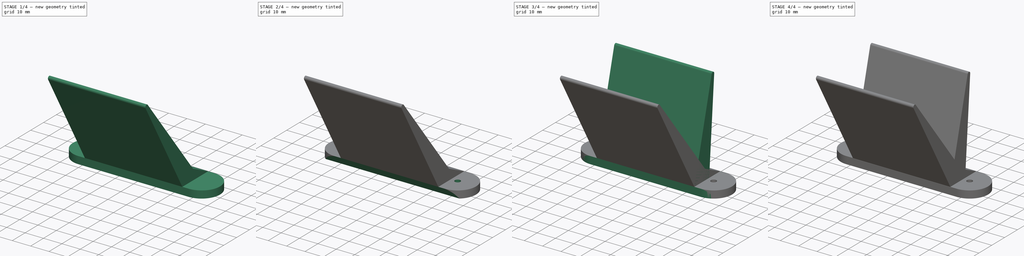
[diagram: build sequence overview — one tinted view per stage of 4, left to right]
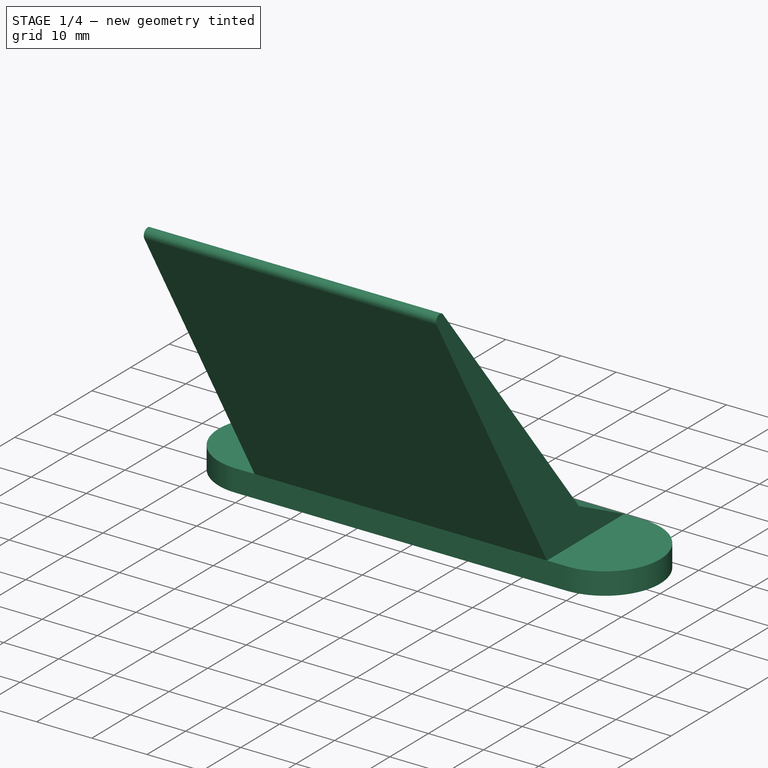
[diagram: stage 1 of 4 — iso view after this stage's code; geometry added in this stage tinted green]
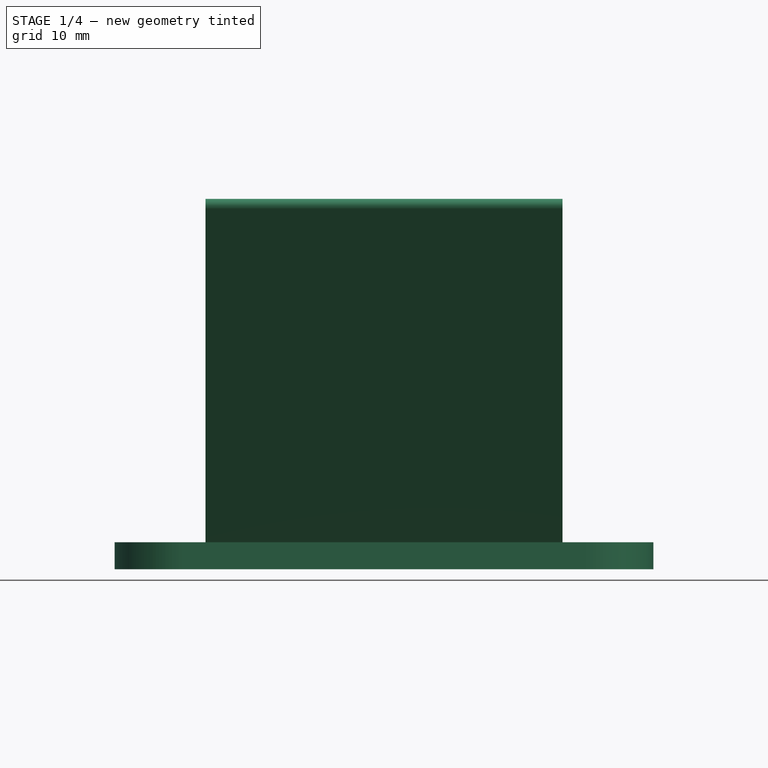
[diagram: stage 1 of 4 — front view after this stage's code; geometry added in this stage tinted green]
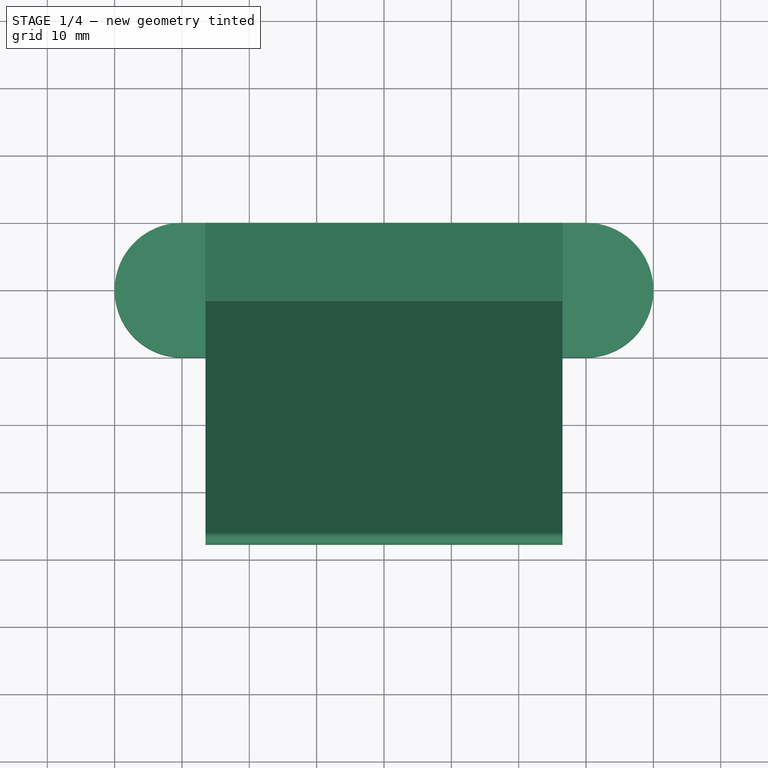
[diagram: stage 1 of 4 — top view after this stage's code; geometry added in this stage tinted green]
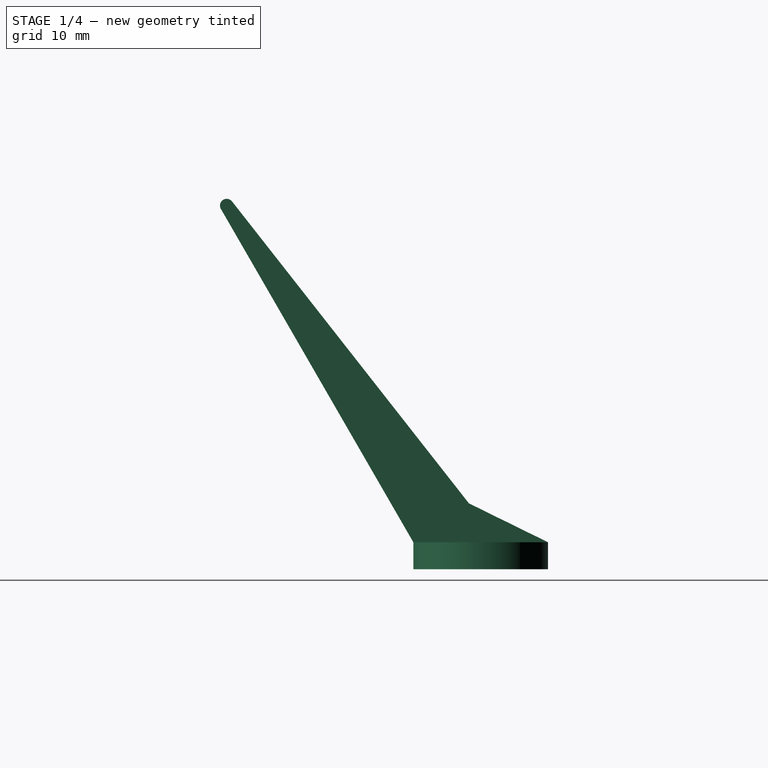
[diagram: stage 1 of 4 — right view after this stage's code; geometry added in this stage tinted green]
FCSTD DOCUMENT  (FreeCAD 0.19R24291 (Git))
Label: Webcammount
License: All rights reserved
LicenseURL: http://en.wikipedia.org/wiki/All_rights_reserved
objects: Sketcher::SketchObject×9, PartDesign::Pocket×5, PartDesign::Pad×4, PartDesign::Body×2, PartDesign::Fillet×1
note: 31 computed .brp shape members not serialized (recipe doc carries the construction recipe); baked Part::Feature solids carry a one-line shape summary decoded from their .brp

FEATURE [PartDesign::Body] Body  label="FoscamW81Flat"
  Group = -> [Sketch,Pad,Sketch001,Pad001,Sketch002,Pocket,Sketch003,Pocket001,Fillet]
  Origin = -> Origin
  Tip = -> Fillet
FEATURE [Sketcher::SketchObject] Sketch004
  FullyConstrained = true
  MapMode = 5
  Support = -> [XY_Plane001]
  expr: Constraints[9] = -Constraints[8] / 2
  sketch-geometry (4):
    g0: LineSegment StartX=-30 StartY=10 StartZ=0 EndX=30 EndY=10 EndZ=0
    g1: LineSegment StartX=30 StartY=-10 StartZ=0 EndX=-30 EndY=-10 EndZ=0
    g2: ArcOfCircle CenterX=-30 CenterY=0 CenterZ=0 NormalX=0 NormalY=0 NormalZ=1 AngleXU=0 Radius=10 StartAngle=1.5708 EndAngle=4.71239
    g3: ArcOfCircle CenterX=30 CenterY=6e-16 CenterZ=0 NormalX=0 NormalY=0 NormalZ=1 AngleXU=0 Radius=10 StartAngle=4.71239 EndAngle=7.85398
  constraints (10):
    c: Horizontal(g0)
    c: Horizontal(g1)
    c: Tangent(g3,g0) = 1.5708
    c: Tangent(g3,g1) = 1.5708
    c: Tangent(g2,g0) = 1.5708
    c: Tangent(g2,g1) = 1.5708
    c: PointOnObject(g2,g-1)
    c: Diameter(g2) = 20
    c: Distance(g0) = 60
    c: DistanceX(g-2,g0) = -30
FEATURE [PartDesign::Pad] Pad003
  Direction = (1,1,1)
  Length = 4
  Length2 = 100
  Profile = -> Sketch004
  Type = 0
FEATURE [Sketcher::SketchObject] Sketch005
  ExternalGeometry = -> [Pad003]
  FullyConstrained = true
  MapMode = 5
  Placement = pos=(0,0,0) rot=(0.57735,0.57735,0.57735;2.0944rad)
  Support = -> [YZ_Plane001]
  sketch-geometry (13):
    g0: LineSegment StartX=0 StartY=0 StartZ=0 EndX=0 EndY=4 EndZ=0
    g1: LineSegment StartX=-10 StartY=4 StartZ=0 EndX=0 EndY=4 EndZ=0
    g2: LineSegment StartX=0 StartY=4 StartZ=0 EndX=2.7866 EndY=4 EndZ=0
    g3: LineSegment StartX=-10 StartY=4 StartZ=0 EndX=2.7866 EndY=4 EndZ=0
    g4: LineSegment StartX=-10 StartY=4 StartZ=0 EndX=-38.5788 EndY=53.5 EndZ=0
    g5: LineSegment StartX=-36.9261 StartY=54.6173 StartZ=0 EndX=2.7866 EndY=4 EndZ=0
    g6: ArcOfCircle CenterX=-37.7128 CenterY=54 CenterZ=0 NormalX=0 NormalY=0 NormalZ=1 AngleXU=0 Radius=1 StartAngle=0.66526 EndAngle=3.66519
    g7: LineSegment StartX=-36.9261 StartY=54.6173 StartZ=0 EndX=-11.001 EndY=21.5735 EndZ=0
    g8: LineSegment StartX=10 StartY=4 StartZ=0 EndX=-10 EndY=4 EndZ=0
    g9: LineSegment StartX=-11.001 StartY=21.5735 StartZ=0 EndX=-17.295 EndY=16.6354 EndZ=0
    g10: LineSegment StartX=-11.001 StartY=21.5735 StartZ=0 EndX=-1.74204 EndY=9.77214 EndZ=0
    g11: LineSegment StartX=-11.001 StartY=21.5735 StartZ=0 EndX=-1.74204 EndY=9.77214 EndZ=0
    g12: LineSegment StartX=-1.74204 StartY=9.77214 StartZ=0 EndX=10 EndY=4 EndZ=0
  constraints (32):
    c: Coincident(g0,g-1)
    c: PointOnObject(g0,g-3)
    c: Vertical(g0)
    c: Coincident(g1,g0)
    c: Coincident(g2,g0)
    c: PointOnObject(g2,g-3)
    c: Coincident(g3,g1)
    c: Coincident(g3,g2)
    c: Coincident(g4,g3)
    c: Coincident(g5,g3)
    c: Tangent(g6,g4) = 1.5708
    c: Tangent(g6,g5) = 1.5708
    c: Diameter(g6) = 2
    c: PointOnObject(g7,g5)
    c: Distance(g6,g3) = 50
    c: Coincident(g-3,g3)
    c: Angle(g3,g4) = 2.0944
    c: Distance(g5,g7) = 42
    c: Coincident(g7,g6)
    c: Coincident(g8,g4)
    c: Coincident(g9,g7)
    c: PointOnObject(g9,g4)
    c: Perpendicular(g7,g9)
    c: Distance(g9) = 8
    c: Coincident(g10,g7)
    c: PointOnObject(g10,g5)
    c: Distance(g10) = 15
    c: Coincident(g8,g-3)
    c: Coincident(g11,g7)
    c: Coincident(g11,g10)
    c: Coincident(g12,g11)
    c: Coincident(g12,g8)
FEATURE [PartDesign::Pad] Pad002
  BaseFeature = -> Pad003
  Direction = (1,1,1)
  Length = 53
  Length2 = 100
  Midplane = true
  Profile = -> Sketch005
  Type = 0
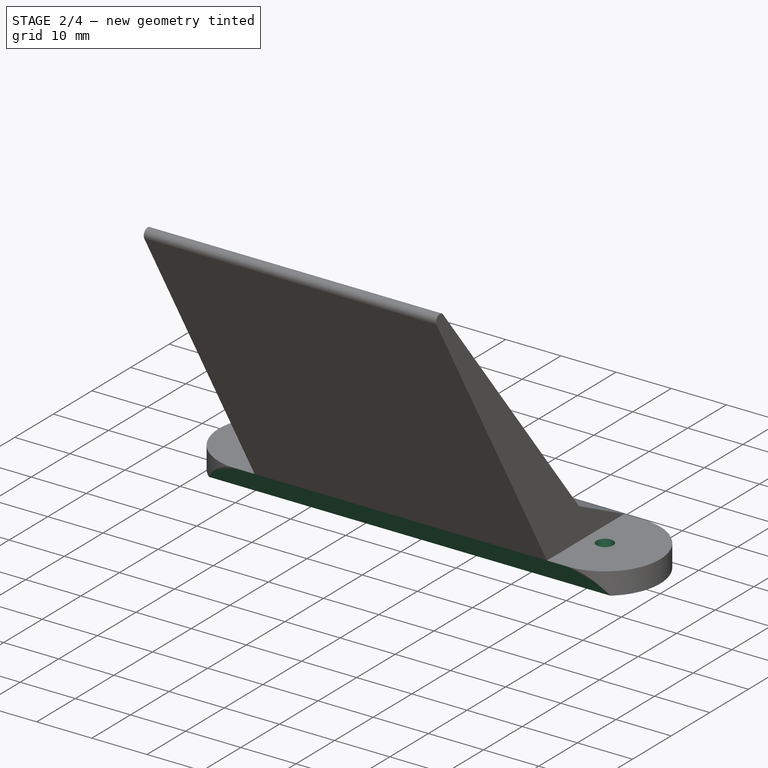
[diagram: stage 2 of 4 — iso view after this stage's code; geometry added in this stage tinted green]
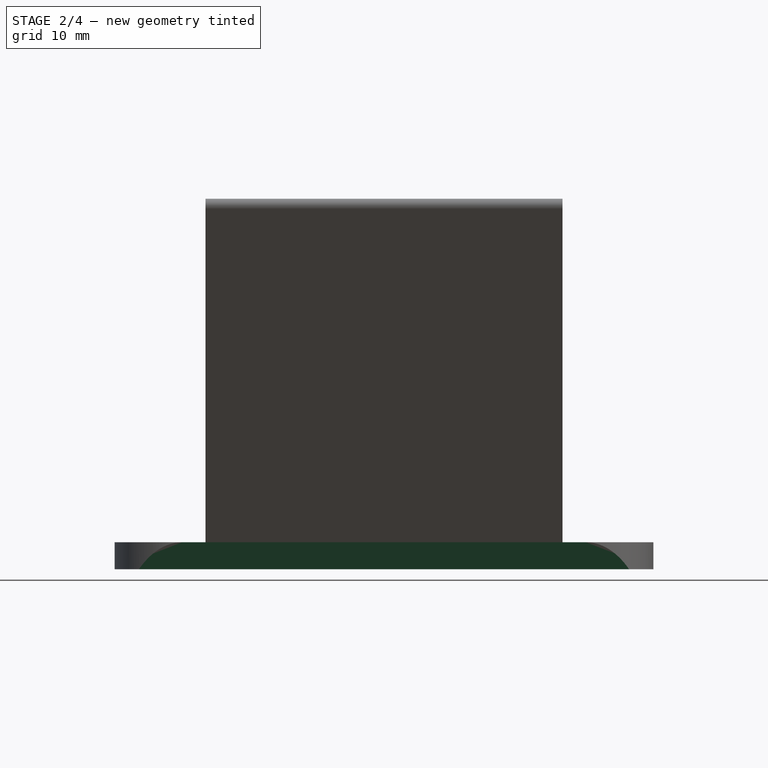
[diagram: stage 2 of 4 — front view after this stage's code; geometry added in this stage tinted green]
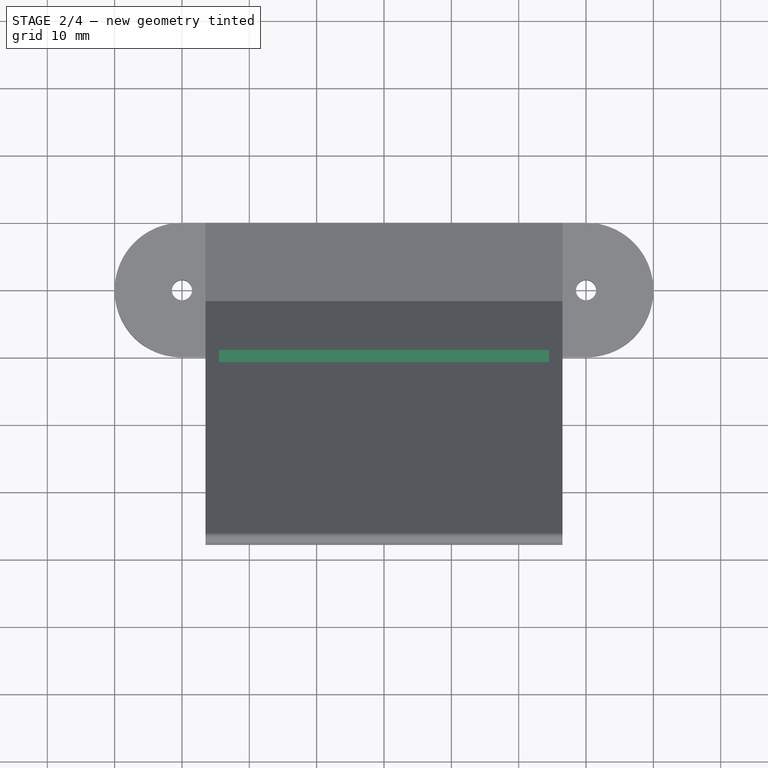
[diagram: stage 2 of 4 — top view after this stage's code; geometry added in this stage tinted green]
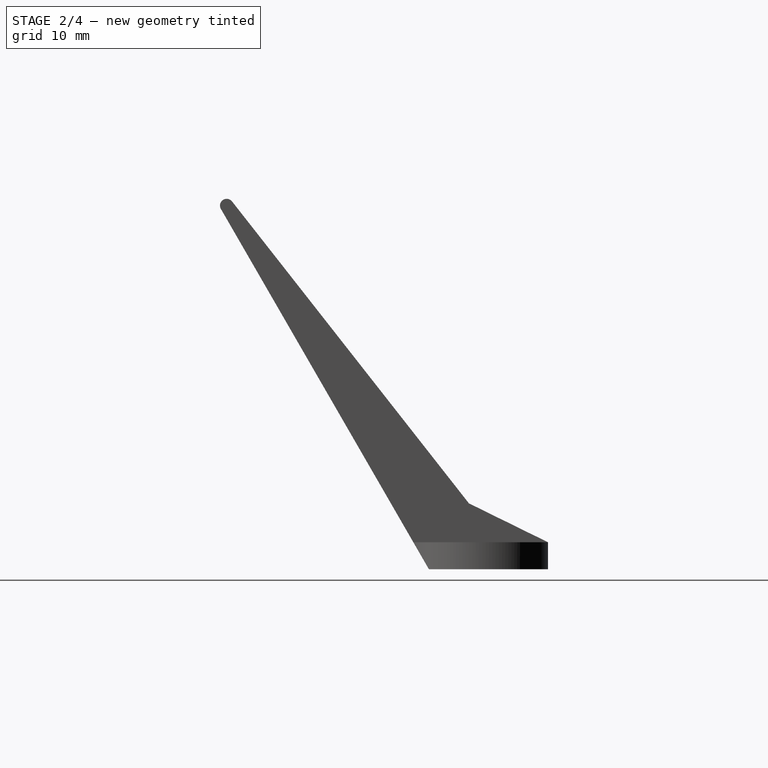
[diagram: stage 2 of 4 — right view after this stage's code; geometry added in this stage tinted green]
FEATURE [Sketcher::SketchObject] Sketch007
  ExternalGeometry = -> [Pad002]
  FullyConstrained = true
  MapMode = 5
  Placement = pos=(0,0,4) rot=(0,0,1;0rad)
  Support = -> [Pad002]
  expr: Constraints[1] = Constraints[0]
  sketch-geometry (2):
    g0: Circle CenterX=-30 CenterY=0 CenterZ=0 NormalX=0 NormalY=0 NormalZ=1 AngleXU=0 Radius=1.5
    g1: Circle CenterX=30 CenterY=4e-16 CenterZ=0 NormalX=0 NormalY=0 NormalZ=1 AngleXU=0 Radius=1.5
  constraints (4):
    c: Diameter(g0) = 3
    c: Diameter(g1) = 3
    c: Coincident(g0,g-3)
    c: Coincident(g1,g-4)
FEATURE [PartDesign::Pocket] Pocket002
  BaseFeature = -> Pad002
  Length = 5
  Length2 = 100
  Profile = -> Sketch007
  Type = 1
FEATURE [Sketcher::SketchObject] Sketch008
  ExternalGeometry = -> [Pocket002]
  FullyConstrained = true
  MapMode = 5
  Placement = pos=(0,3.66741,2.87733) rot=(0,0.437457,0.89924;3.14159rad)
  Support = -> [Pocket002]
  expr: Constraints[11] = -Constraints[9] / 2
  sketch-geometry (4):
    g0: LineSegment StartX=-24.5 StartY=23.7636 StartZ=0 EndX=24.5 EndY=23.7636 EndZ=0
    g1: LineSegment StartX=24.5 StartY=23.7636 StartZ=0 EndX=24.5 EndY=20.7636 EndZ=0
    g2: LineSegment StartX=24.5 StartY=20.7636 StartZ=0 EndX=-24.5 EndY=20.7636 EndZ=0
    g3: LineSegment StartX=-24.5 StartY=20.7636 StartZ=0 EndX=-24.5 EndY=23.7636 EndZ=0
  constraints (12):
    c: Coincident(g0,g1)
    c: Coincident(g1,g2)
    c: Coincident(g2,g3)
    c: Coincident(g3,g0)
    c: Horizontal(g0)
    c: Horizontal(g2)
    c: Vertical(g1)
    c: Vertical(g3)
    c: PointOnObject(g0,g-3)
    c: Distance(g2) = 49
    c: Distance(g3) = 3
    c: DistanceX(g-2,g2) = -24.5
FEATURE [PartDesign::Pocket] Pocket003
  BaseFeature = -> Pocket002
  Length = 7
  Length2 = 100
  Profile = -> Sketch008
  Type = 0
FEATURE [Sketcher::SketchObject] Sketch009
  ExternalGeometry = -> [Pocket003]
  FullyConstrained = true
  MapMode = 5
  Placement = pos=(0,0,0) rot=(0.57735,0.57735,0.57735;2.0944rad)
  Support = -> [YZ_Plane001]
  sketch-geometry (3):
    g0: LineSegment StartX=-10 StartY=4 StartZ=0 EndX=-7.6906 EndY=-1.11e-14 EndZ=0
    g1: LineSegment StartX=-7.6906 StartY=-1.05e-14 StartZ=0 EndX=-10 EndY=0 EndZ=0
    g2: LineSegment StartX=-10 StartY=0 StartZ=0 EndX=-10 EndY=4 EndZ=0
  constraints (7):
    c: Coincident(g0,g-5)
    c: PointOnObject(g0,g-6)
    c: Coincident(g1,g0)
    c: Coincident(g1,g-6)
    c: Coincident(g2,g1)
    c: Coincident(g2,g0)
    c: Parallel(g0,g-3)
FEATURE [PartDesign::Pocket] Pocket004
  BaseFeature = -> Pocket003
  Length = 5
  Length2 = 100
  Midplane = true
  Profile = -> Sketch009
  Type = 1
FEATURE [PartDesign::Body] Body001  label="FoscamW81Straight"
  Group = -> [Sketch004,Pad003,Sketch005,Pad002,Sketch007,Pocket002,Sketch008,Pocket003,Sketch009,Pocket004]
  Origin = -> Origin001
  Tip = -> Pocket004
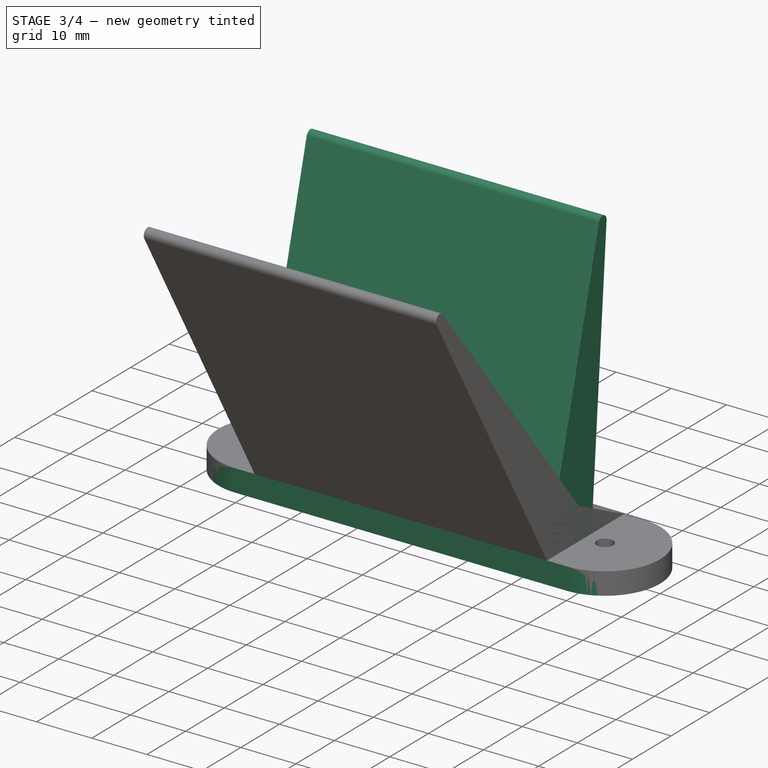
[diagram: stage 3 of 4 — iso view after this stage's code; geometry added in this stage tinted green]
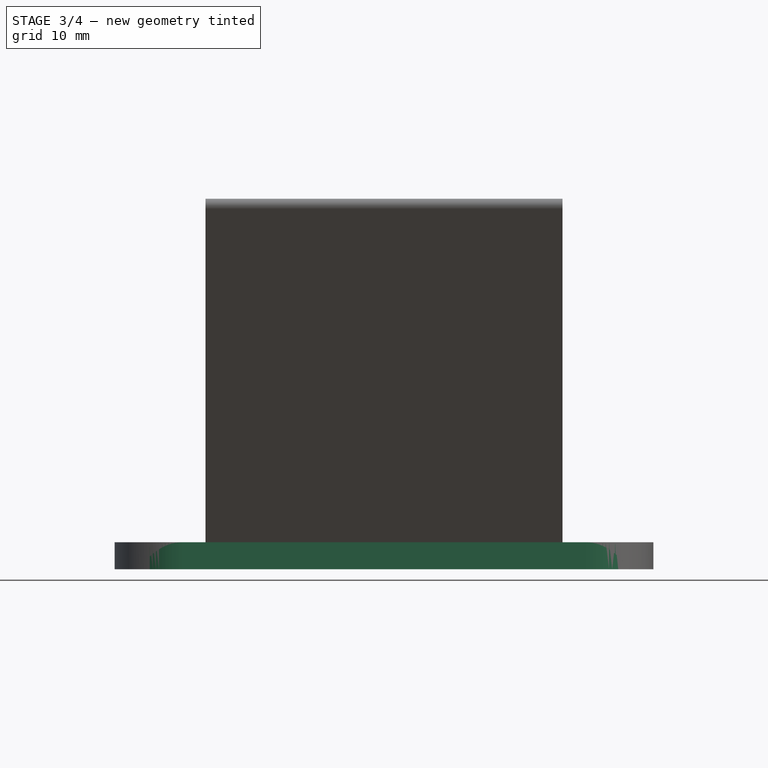
[diagram: stage 3 of 4 — front view after this stage's code; geometry added in this stage tinted green]
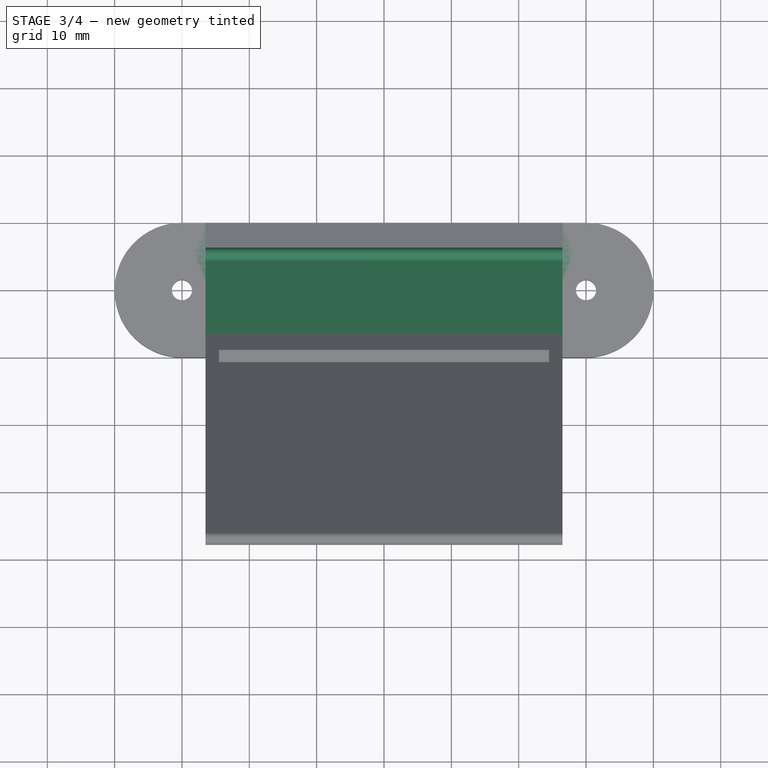
[diagram: stage 3 of 4 — top view after this stage's code; geometry added in this stage tinted green]
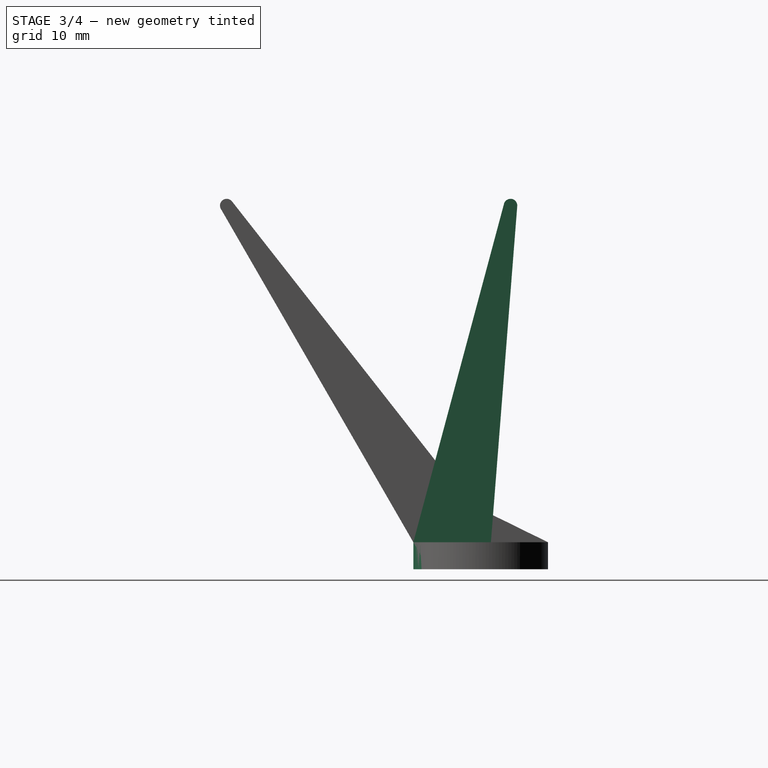
[diagram: stage 3 of 4 — right view after this stage's code; geometry added in this stage tinted green]
FEATURE [Sketcher::SketchObject] Sketch
  FullyConstrained = true
  MapMode = 5
  Support = -> [XY_Plane]
  expr: Constraints[9] = -Constraints[8] / 2
  sketch-geometry (4):
    g0: LineSegment StartX=-30 StartY=10 StartZ=0 EndX=30 EndY=10 EndZ=0
    g1: LineSegment StartX=30 StartY=-10 StartZ=0 EndX=-30 EndY=-10 EndZ=0
    g2: ArcOfCircle CenterX=-30 CenterY=0 CenterZ=0 NormalX=0 NormalY=0 NormalZ=1 AngleXU=0 Radius=10 StartAngle=1.5708 EndAngle=4.71239
    g3: ArcOfCircle CenterX=30 CenterY=6e-16 CenterZ=0 NormalX=0 NormalY=0 NormalZ=1 AngleXU=0 Radius=10 StartAngle=4.71239 EndAngle=7.85398
  constraints (10):
    c: Horizontal(g0)
    c: Horizontal(g1)
    c: Tangent(g3,g0) = 1.5708
    c: Tangent(g3,g1) = 1.5708
    c: Tangent(g2,g0) = 1.5708
    c: Tangent(g2,g1) = 1.5708
    c: PointOnObject(g2,g-1)
    c: Diameter(g2) = 20
    c: Distance(g0) = 60
    c: DistanceX(g-2,g0) = -30
FEATURE [PartDesign::Pad] Pad
  Direction = (1,1,1)
  Length = 4
  Length2 = 100
  Profile = -> Sketch
  Type = 0
FEATURE [Sketcher::SketchObject] Sketch001
  ExternalGeometry = -> [Pad]
  FullyConstrained = true
  MapMode = 5
  Placement = pos=(0,0,0) rot=(0.57735,0.57735,0.57735;2.0944rad)
  Support = -> [YZ_Plane]
  sketch-geometry (8):
    g0: LineSegment StartX=0 StartY=0 StartZ=0 EndX=0 EndY=4 EndZ=0
    g1: LineSegment StartX=-10 StartY=4 StartZ=0 EndX=0 EndY=4 EndZ=0
    g2: LineSegment StartX=0 StartY=4 StartZ=0 EndX=1.51651 EndY=4 EndZ=0
    g3: LineSegment StartX=-10 StartY=4 StartZ=0 EndX=1.51651 EndY=4 EndZ=0
    g4: LineSegment StartX=-10 StartY=4 StartZ=0 EndX=3.46681 EndY=54.2588 EndZ=0
    g5: LineSegment StartX=5.42968 StartY=53.9219 StartZ=0 EndX=1.51651 EndY=4 EndZ=0
    g6: ArcOfCircle CenterX=4.43274 CenterY=54 CenterZ=0 NormalX=0 NormalY=0 NormalZ=1 AngleXU=0 Radius=1 StartAngle=6.20496 EndAngle=9.16298
    g7: LineSegment StartX=-7.85641 StartY=12 StartZ=0 EndX=2.14359 EndY=12 EndZ=0
  constraints (21):
    c: Coincident(g0,g-1)
    c: PointOnObject(g0,g-3)
    c: Vertical(g0)
    c: Coincident(g1,g0)
    c: Coincident(g2,g0)
    c: PointOnObject(g2,g-3)
    c: Coincident(g3,g1)
    c: Coincident(g3,g2)
    c: Coincident(g4,g3)
    c: Coincident(g5,g3)
    c: Tangent(g6,g4) = 1.5708
    c: Tangent(g6,g5) = 1.5708
    c: Angle(g3,g4) = 1.309
    c: Diameter(g6) = 2
    c: PointOnObject(g7,g4)
    c: PointOnObject(g7,g5)
    c: Horizontal(g7)
    c: Distance(g6,g3) = 50
    c: Distance(g6,g7) = 42
    c: Distance(g7) = 10
    c: Coincident(g-3,g3)
FEATURE [PartDesign::Pad] Pad001
  BaseFeature = -> Pad
  Direction = (1,1,1)
  Length = 53
  Length2 = 100
  Midplane = true
  Profile = -> Sketch001
  Type = 0
FEATURE [Sketcher::SketchObject] Sketch002
  ExternalGeometry = -> [Pad001]
  FullyConstrained = true
  MapMode = 5
  Placement = pos=(0,0,4) rot=(0,0,1;0rad)
  Support = -> [Pad001]
  expr: Constraints[1] = Constraints[0]
  sketch-geometry (2):
    g0: Circle CenterX=-30 CenterY=0 CenterZ=0 NormalX=0 NormalY=0 NormalZ=1 AngleXU=0 Radius=1.5
    g1: Circle CenterX=30 CenterY=4e-16 CenterZ=0 NormalX=0 NormalY=0 NormalZ=1 AngleXU=0 Radius=1.5
  constraints (4):
    c: Diameter(g0) = 3
    c: Diameter(g1) = 3
    c: Coincident(g0,g-3)
    c: Coincident(g1,g-4)
FEATURE [PartDesign::Pocket] Pocket
  BaseFeature = -> Pad001
  Length = 5
  Length2 = 100
  Profile = -> Sketch002
  Type = 1
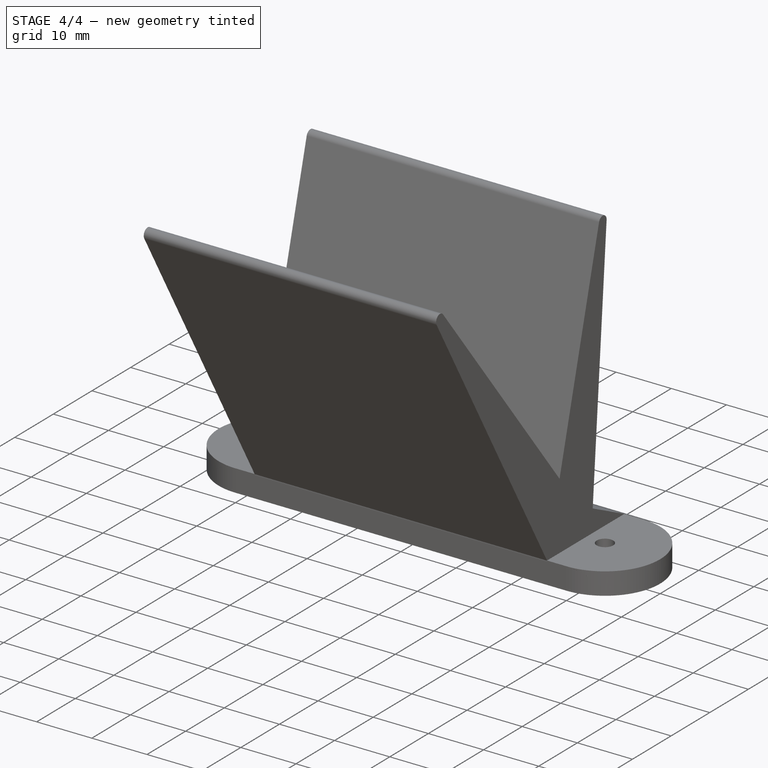
[diagram: stage 4 of 4 — iso view after this stage's code; geometry added in this stage tinted green]
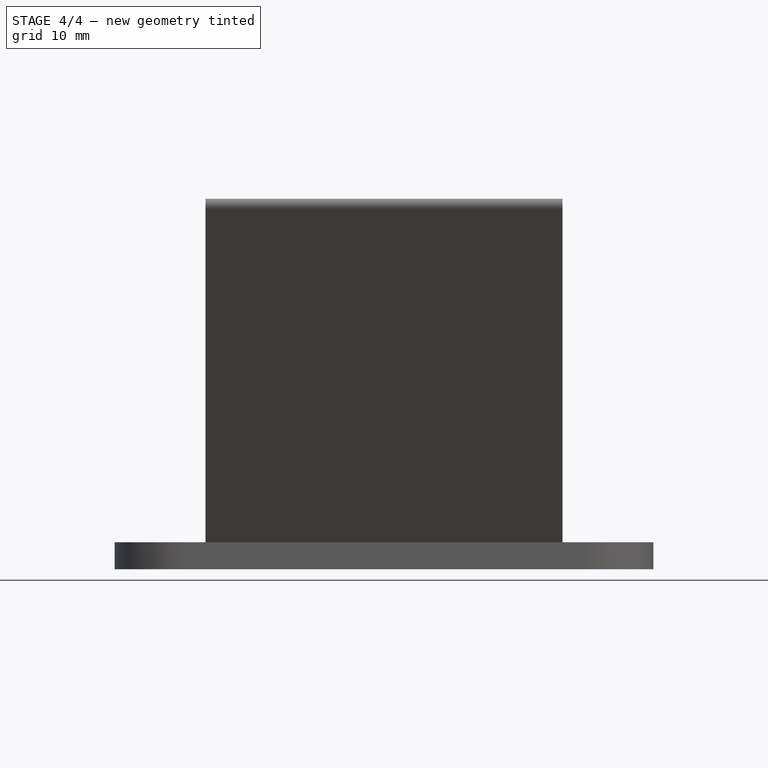
[diagram: stage 4 of 4 — front view after this stage's code; geometry added in this stage tinted green]
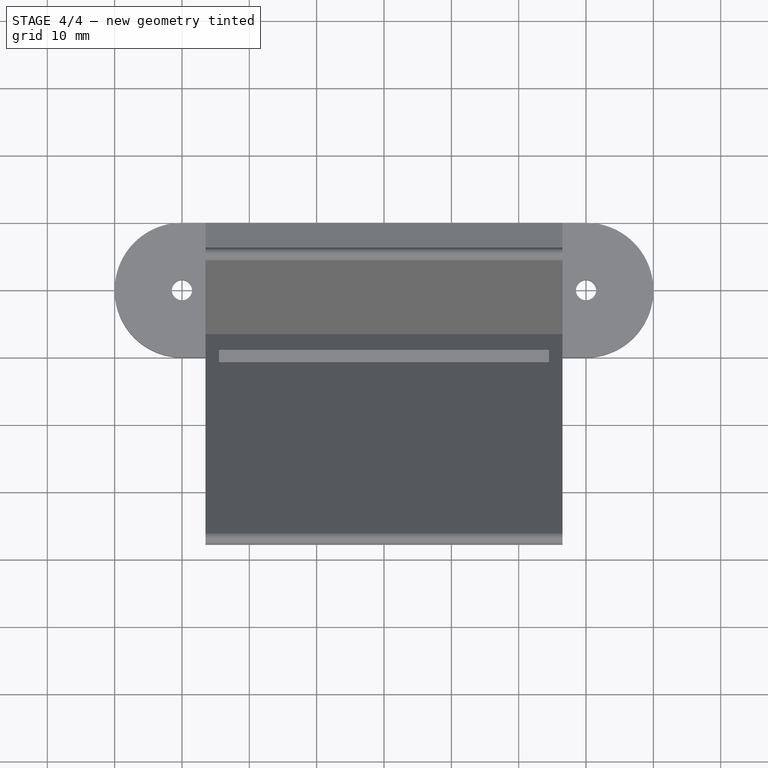
[diagram: stage 4 of 4 — top view after this stage's code; geometry added in this stage tinted green]
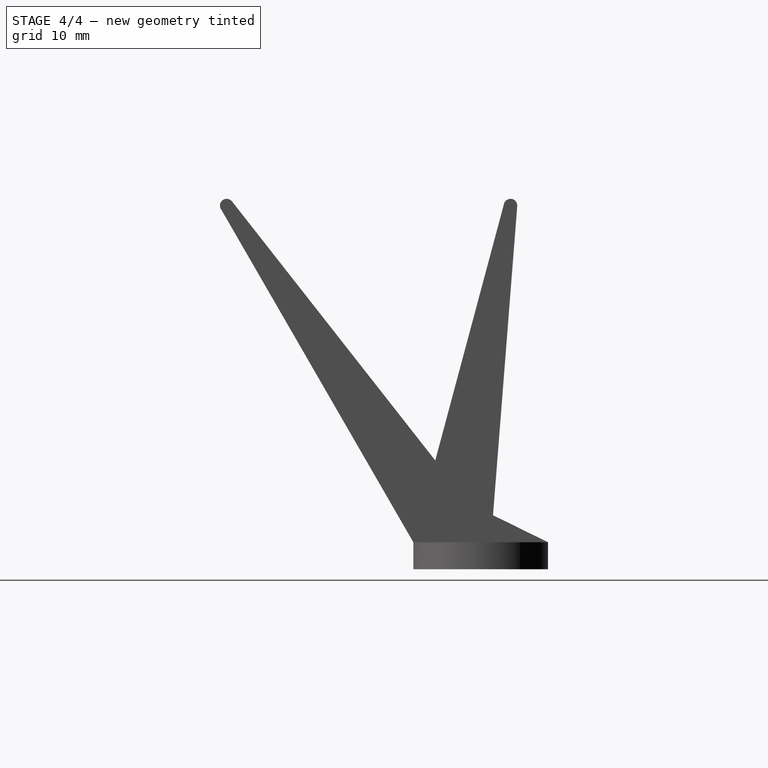
[diagram: stage 4 of 4 — right view after this stage's code; geometry added in this stage tinted green]
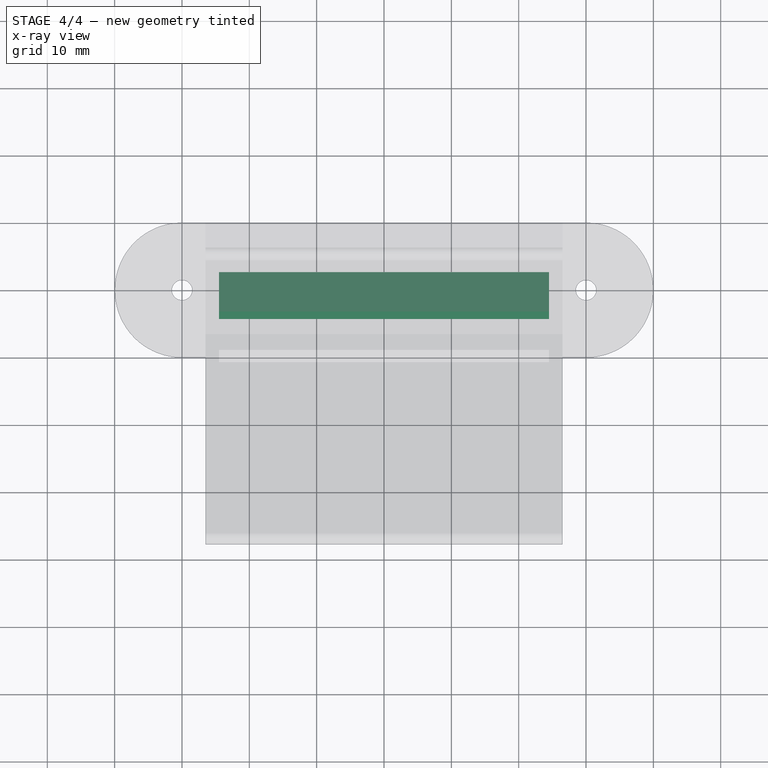
[diagram: stage 4 of 4 — x-ray composite at the top view; earlier geometry ghosted, this stage's added geometry solid]
FEATURE [Sketcher::SketchObject] Sketch003
  ExternalGeometry = -> [Pocket]
  FullyConstrained = true
  MapMode = 5
  Placement = pos=(3e-16,1.19562,-0.0937195) rot=(0,0.734216,0.678916;3.14159rad)
  Support = -> [Pocket]
  expr: Constraints[11] = -Constraints[10] / 2
  sketch-geometry (4):
    g0: LineSegment StartX=-24.5 StartY=19.1813 StartZ=0 EndX=24.5 EndY=19.1813 EndZ=0
    g1: LineSegment StartX=24.5 StartY=19.1813 StartZ=0 EndX=24.5 EndY=16.1813 EndZ=0
    g2: LineSegment StartX=24.5 StartY=16.1813 StartZ=0 EndX=-24.5 EndY=16.1813 EndZ=0
    g3: LineSegment StartX=-24.5 StartY=16.1813 StartZ=0 EndX=-24.5 EndY=19.1813 EndZ=0
  constraints (12):
    c: Coincident(g0,g1)
    c: Coincident(g1,g2)
    c: Coincident(g2,g3)
    c: Coincident(g3,g0)
    c: Horizontal(g0)
    c: Horizontal(g2)
    c: Vertical(g1)
    c: Vertical(g3)
    c: Distance(g2,g-3) = 38
    c: Distance(g1) = 3
    c: Distance(g0) = 49
    c: DistanceX(g-2,g0) = -24.5
FEATURE [PartDesign::Pocket] Pocket001
  BaseFeature = -> Pocket
  Length = 7
  Length2 = 100
  Profile = -> Sketch003
  Type = 0
FEATURE [PartDesign::Fillet] Fillet
  Base = -> Pocket001 [Edge5]
  BaseFeature = -> Pocket001
  Radius = 2
  SupportTransform = false
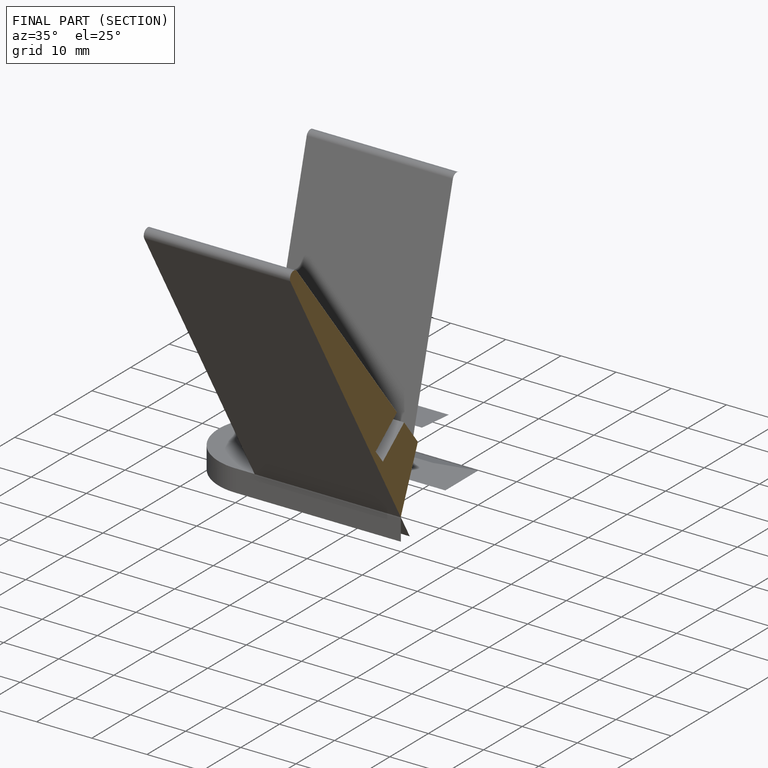
[diagram: finished part — half-section view (interior)]
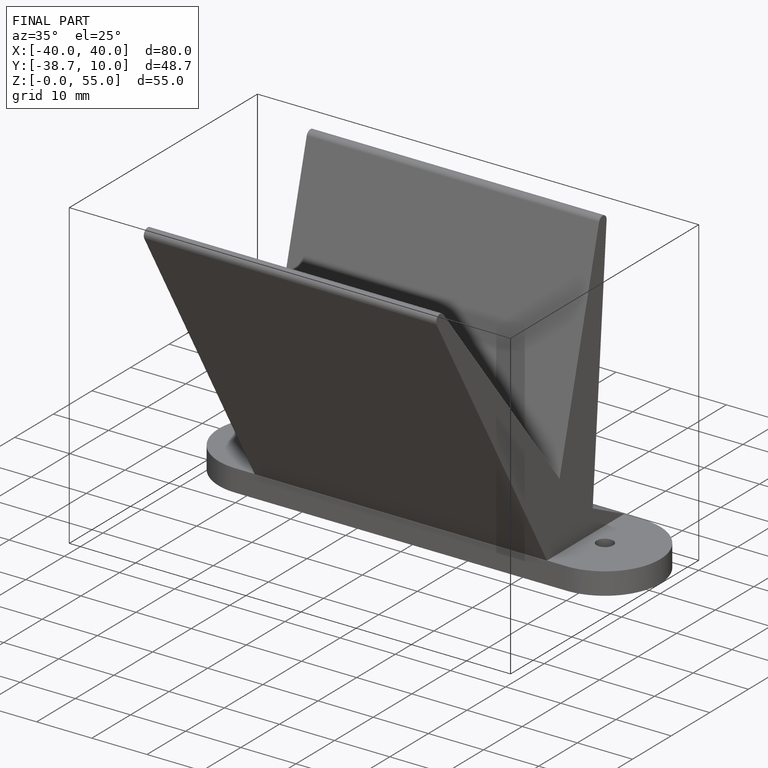
[diagram: finished part — iso view with bounding-box wireframe]
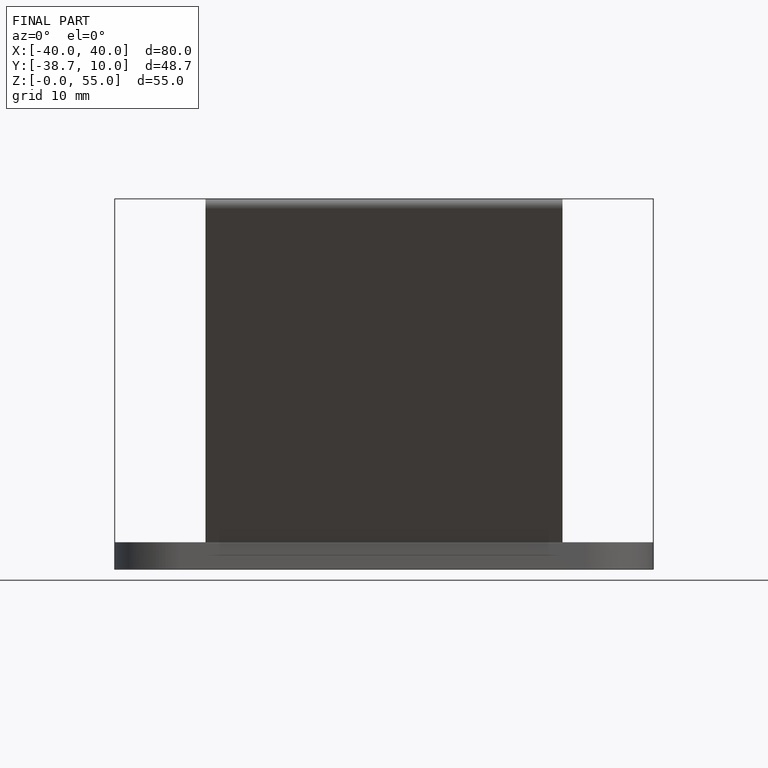
[diagram: finished part — front view with bounding-box wireframe]
